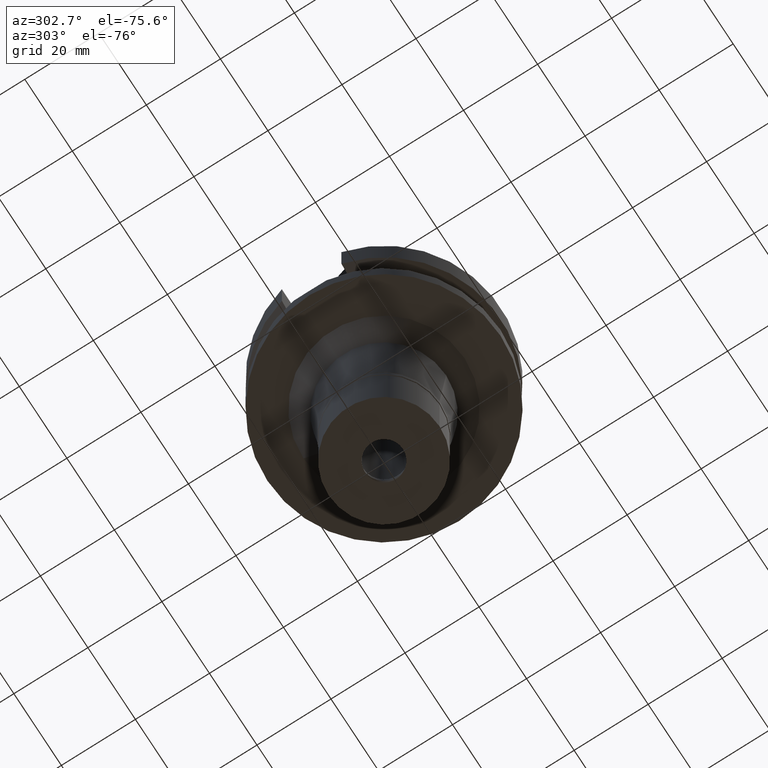
[diagram: clean part render]
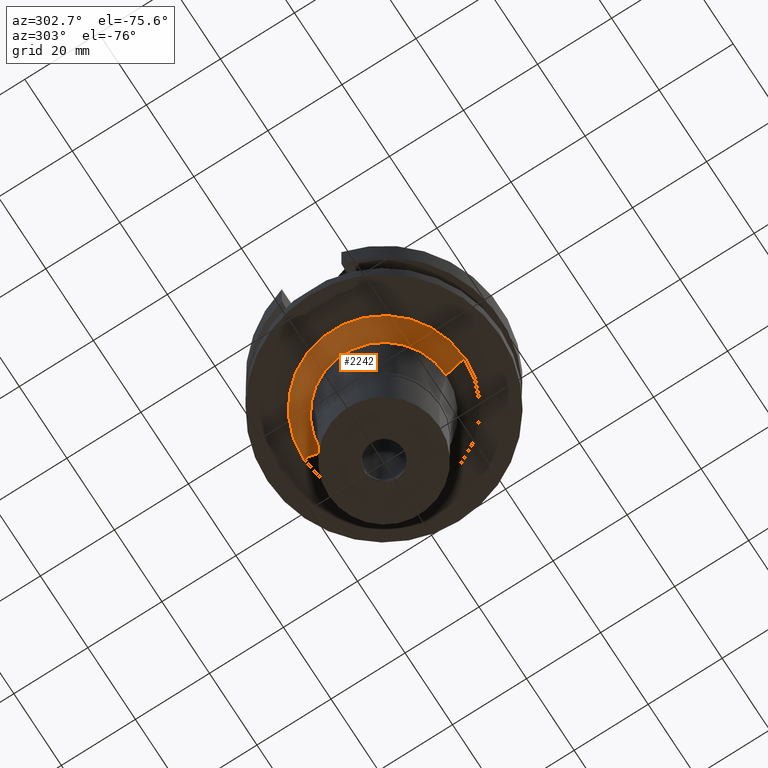
[diagram: same view with one face highlighted and labeled with its STEP entity id]
A machine part, auxiliary view. The second image highlights one B-rep face of the part: STEP entity #2242.
In plain terms, the highlighted conical surface has half-angle 45 deg.
Its self-contained STEP definition (entity closure, byte-faithful):
#139 = DIRECTION ( 'NONE',  ( 0.0000000000000000000, 0.0000000000000000000, -1.000000000000000000 ) ) ;
#151 = CARTESIAN_POINT ( 'NONE',  ( 0.0000000000000000000, 0.0000000000000000000, -27.00000000000000000 ) ) ;
#269 = CIRCLE ( 'NONE', #2350, 16.76727100321999941 ) ;
#275 = VECTOR ( 'NONE', #2598, 1000.000000000000000 ) ;
#316 = VERTEX_POINT ( 'NONE', #1195 ) ;
#387 = DIRECTION ( 'NONE',  ( 0.0000000000000000000, -1.000000000000000000, 0.0000000000000000000 ) ) ;
#562 = DIRECTION ( 'NONE',  ( 0.0000000000000000000, -0.7071067811864980568, -0.7071067811865969777 ) ) ;
#574 = ORIENTED_EDGE ( 'NONE', *, *, #1766, .F. ) ;
#632 = ORIENTED_EDGE ( 'NONE', *, *, #2748, .T. ) ;
#651 = DIRECTION ( 'NONE',  ( 0.0000000000000000000, 1.000000000000000000, 0.0000000000000000000 ) ) ;
#686 = VECTOR ( 'NONE', #562, 1000.000000000000000 ) ;
#773 = EDGE_CURVE ( 'NONE', #1555, #316, #269, .T. ) ;
#872 = CONICAL_SURFACE ( 'NONE', #3110, 19.26727100321999941, 0.7853981633972997312 ) ;
#946 = VERTEX_POINT ( 'NONE', #2220 ) ;
#1018 = ORIENTED_EDGE ( 'NONE', *, *, #1585, .T. ) ;
#1030 = CIRCLE ( 'NONE', #1687, 21.76727100322000297 ) ;
#1195 = CARTESIAN_POINT ( 'NONE',  ( 0.0000000000000000000, 16.76727100321999941, -32.00000000000000000 ) ) ;
#1339 = DIRECTION ( 'NONE',  ( 0.0000000000000000000, 0.0000000000000000000, -1.000000000000000000 ) ) ;
#1371 = DIRECTION ( 'NONE',  ( 0.0000000000000000000, -1.000000000000000000, 0.0000000000000000000 ) ) ;
#1555 = VERTEX_POINT ( 'NONE', #2982 ) ;
#1585 = EDGE_CURVE ( 'NONE', #946, #316, #3047, .T. ) ;
#1611 = DIRECTION ( 'NONE',  ( 0.0000000000000000000, 0.0000000000000000000, 1.000000000000000000 ) ) ;
#1629 = CARTESIAN_POINT ( 'NONE',  ( 0.0000000000000000000, -21.76727100322000297, -27.00000000000000000 ) ) ;
#1687 = AXIS2_PLACEMENT_3D ( 'NONE', #151, #139, #1371 ) ;
#1759 = CARTESIAN_POINT ( 'NONE',  ( 0.0000000000000000000, 0.0000000000000000000, -32.00000000000000000 ) ) ;
#1766 = EDGE_CURVE ( 'NONE', #2624, #1555, #2826, .T. ) ;
#2220 = CARTESIAN_POINT ( 'NONE',  ( 0.0000000000000000000, 21.76727100322000297, -27.00000000000000000 ) ) ;
#2242 = ADVANCED_FACE ( 'NONE', ( #2840 ), #872, .T. ) ;
#2350 = AXIS2_PLACEMENT_3D ( 'NONE', #1759, #1339, #387 ) ;
#2482 = CARTESIAN_POINT ( 'NONE',  ( 0.0000000000000000000, 21.76727100322000297, -27.00000000000000000 ) ) ;
#2598 = DIRECTION ( 'NONE',  ( 0.0000000000000000000, 0.7071067811864980568, -0.7071067811865969777 ) ) ;
#2624 = VERTEX_POINT ( 'NONE', #3027 ) ;
#2668 = ORIENTED_EDGE ( 'NONE', *, *, #773, .F. ) ;
#2748 = EDGE_CURVE ( 'NONE', #2624, #946, #1030, .T. ) ;
#2810 = CARTESIAN_POINT ( 'NONE',  ( 0.0000000000000000000, 0.0000000000000000000, -29.50000000000000000 ) ) ;
#2826 = LINE ( 'NONE', #1629, #275 ) ;
#2840 = FACE_OUTER_BOUND ( 'NONE', #2976, .T. ) ;
#2976 = EDGE_LOOP ( 'NONE', ( #2668, #574, #632, #1018 ) ) ;
#2982 = CARTESIAN_POINT ( 'NONE',  ( 0.0000000000000000000, -16.76727100321999941, -32.00000000000000000 ) ) ;
#3027 = CARTESIAN_POINT ( 'NONE',  ( 0.0000000000000000000, -21.76727100322000297, -27.00000000000000000 ) ) ;
#3047 = LINE ( 'NONE', #2482, #686 ) ;
#3110 = AXIS2_PLACEMENT_3D ( 'NONE', #2810, #1611, #651 ) ;